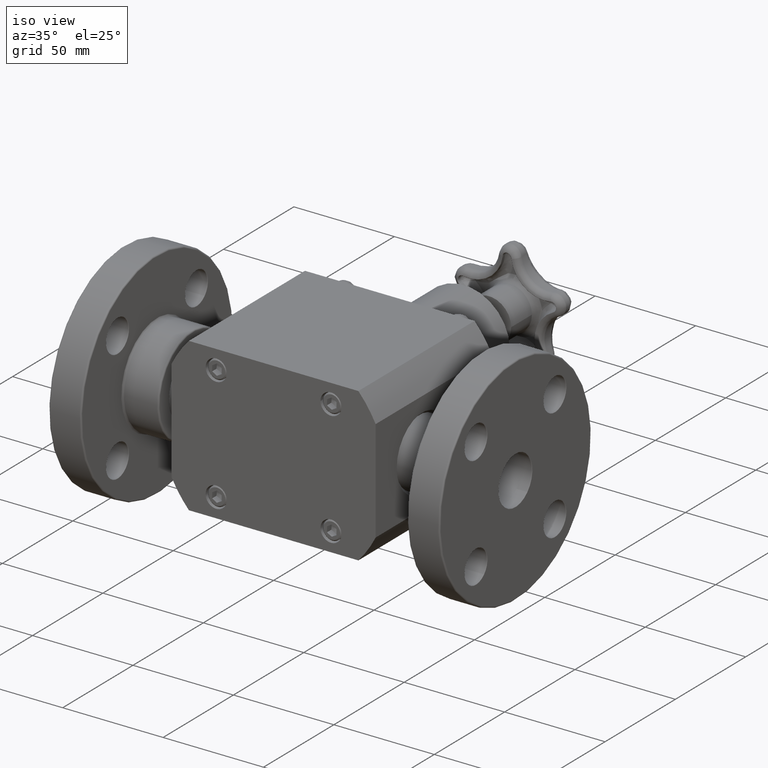
[diagram: clean part render]
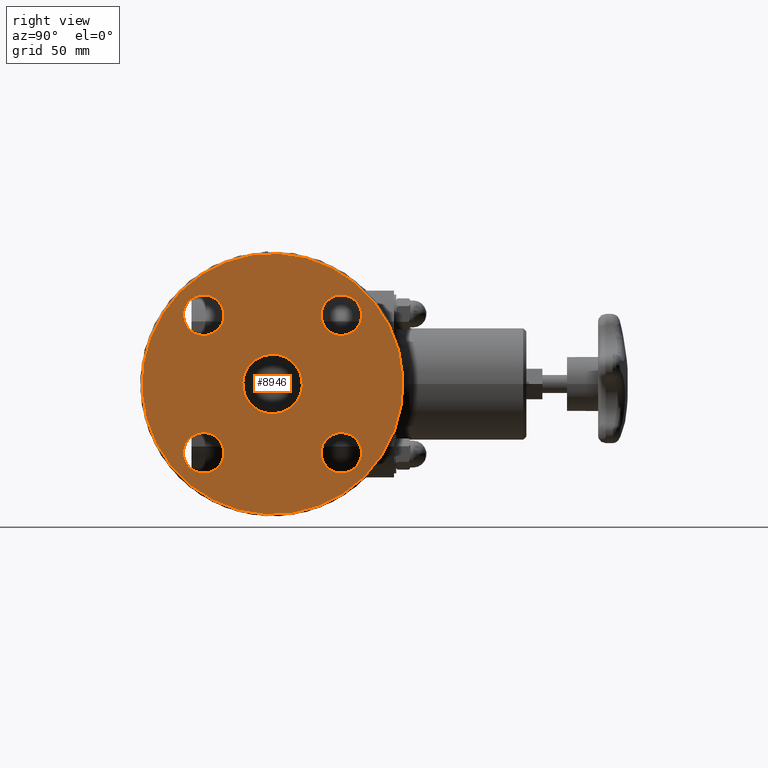
[diagram: tour spotlight — one face highlighted and labeled with its STEP entity id]
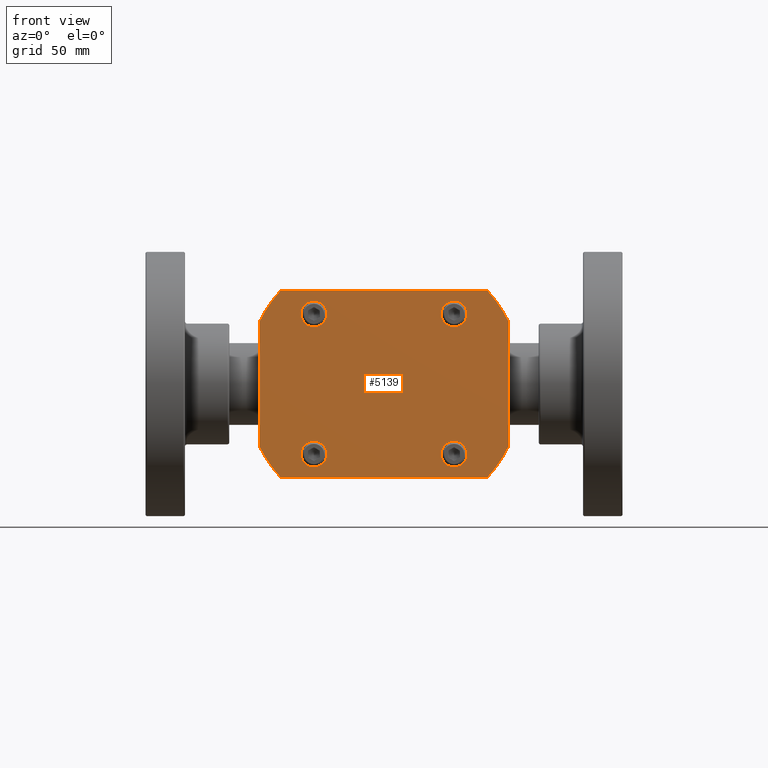
[diagram: tour spotlight — one face highlighted and labeled with its STEP entity id]
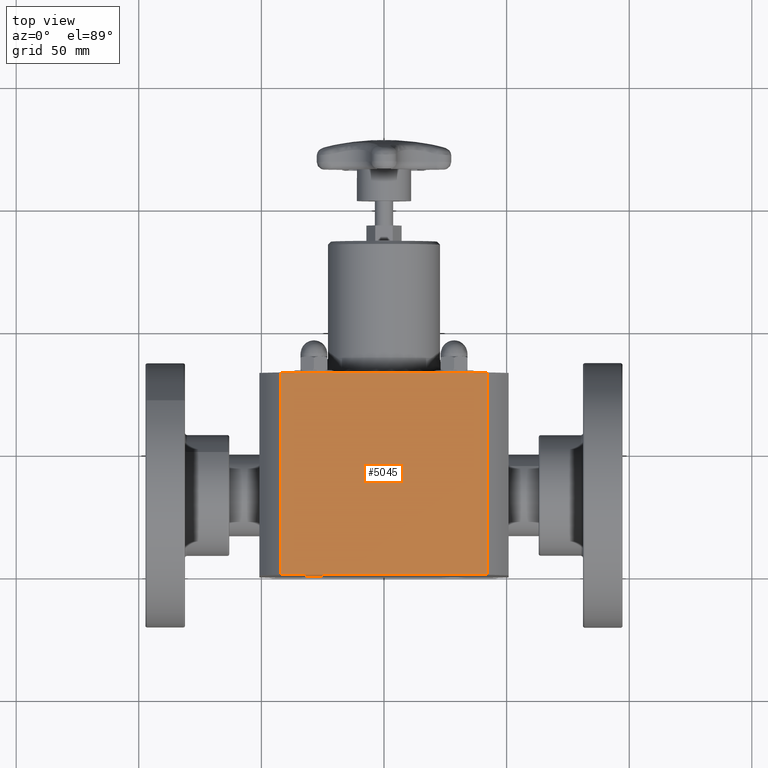
[diagram: tour spotlight — one face highlighted and labeled with its STEP entity id]
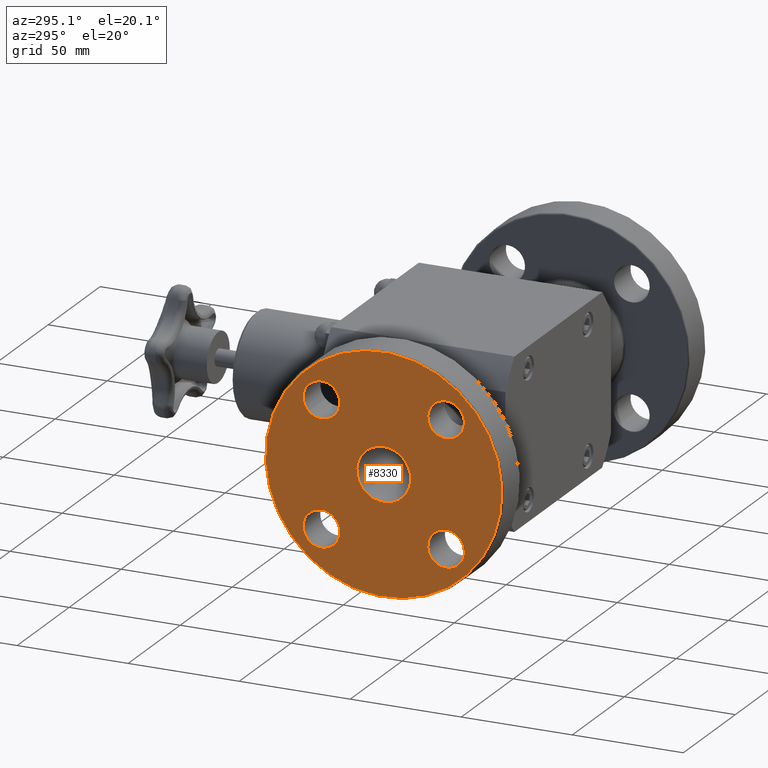
[diagram: tour spotlight — one face highlighted and labeled with its STEP entity id]
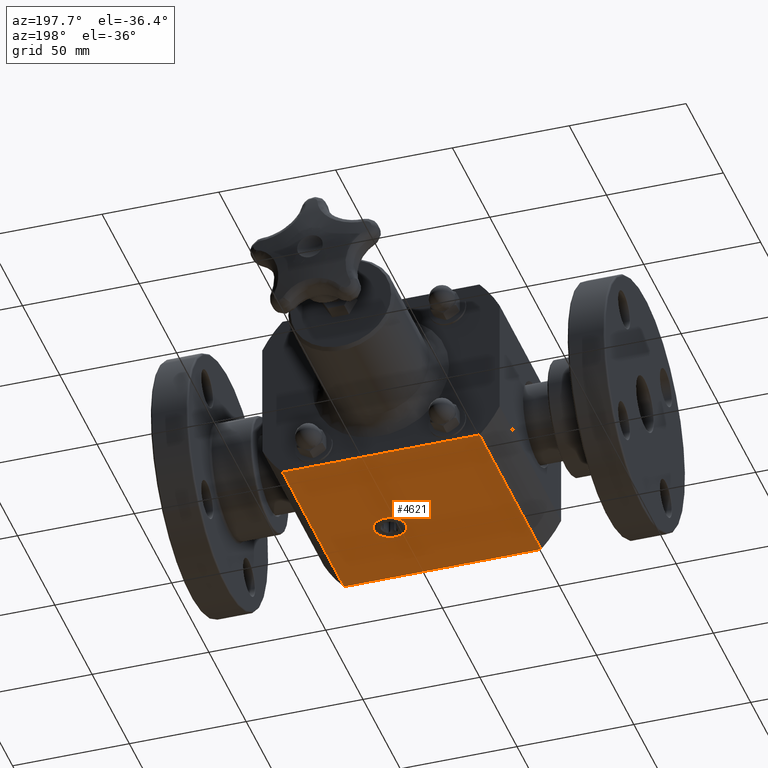
[diagram: tour spotlight — one face highlighted and labeled with its STEP entity id]
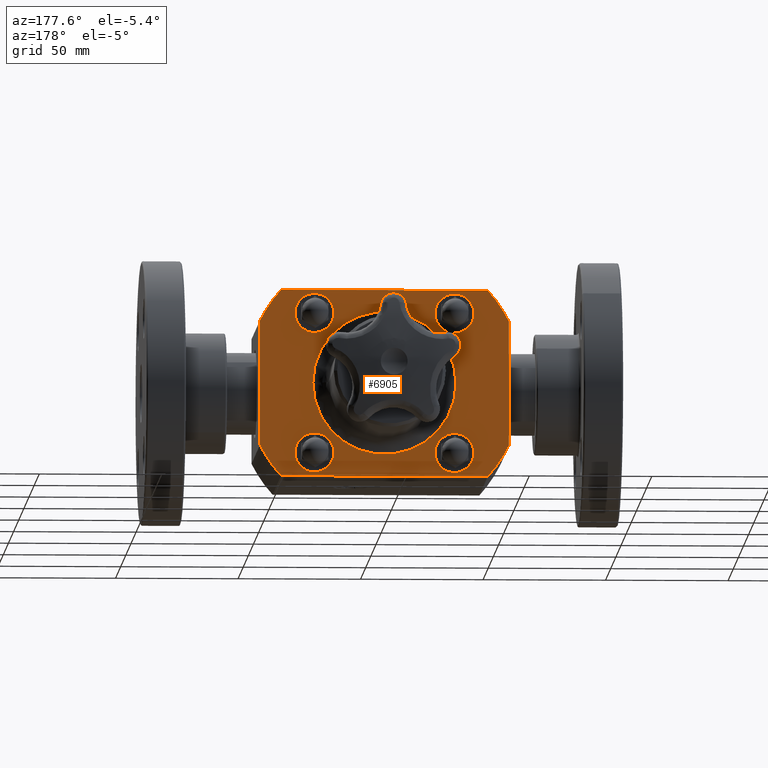
[diagram: tour spotlight — one face highlighted and labeled with its STEP entity id]
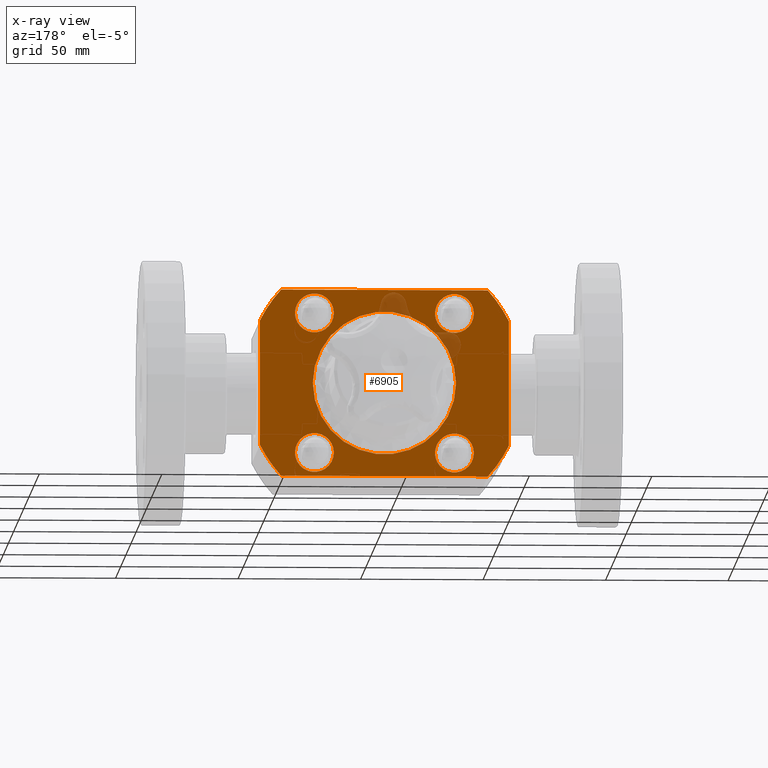
[diagram: x-ray of the same camera — body ghosted, this tour face saturated]
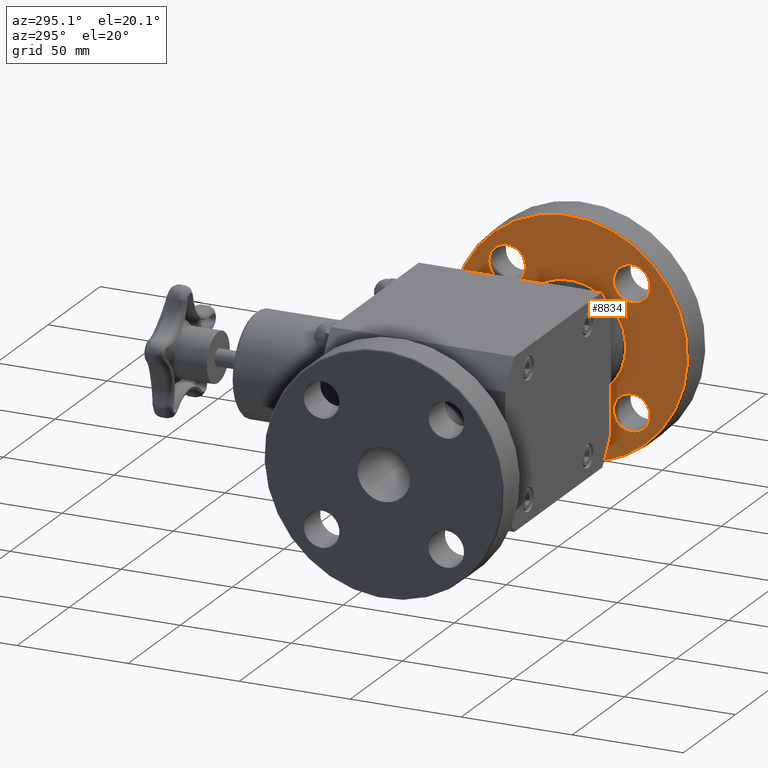
[diagram: tour spotlight — one face highlighted and labeled with its STEP entity id]
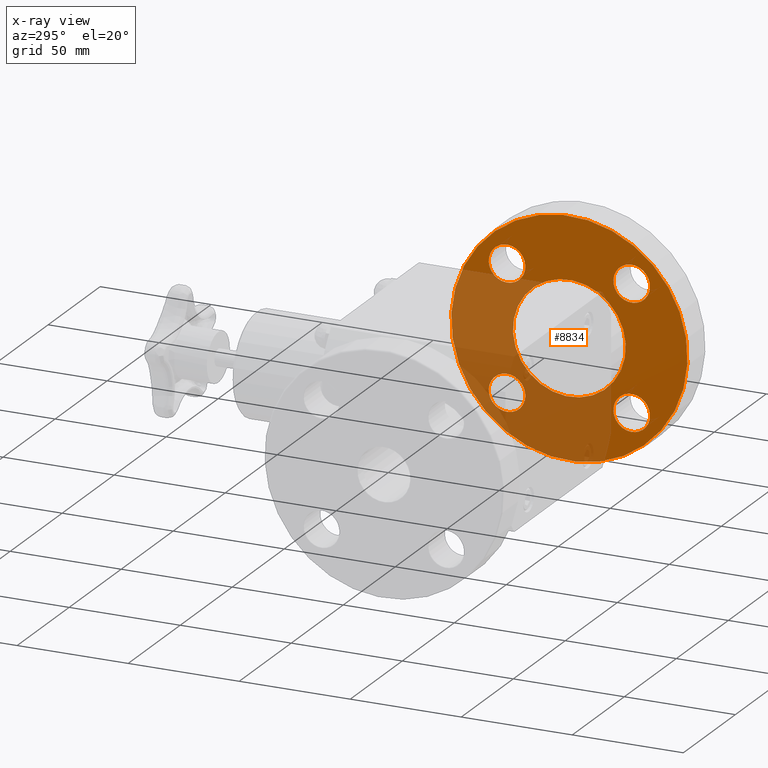
[diagram: x-ray of the same camera — body ghosted, this tour face saturated]
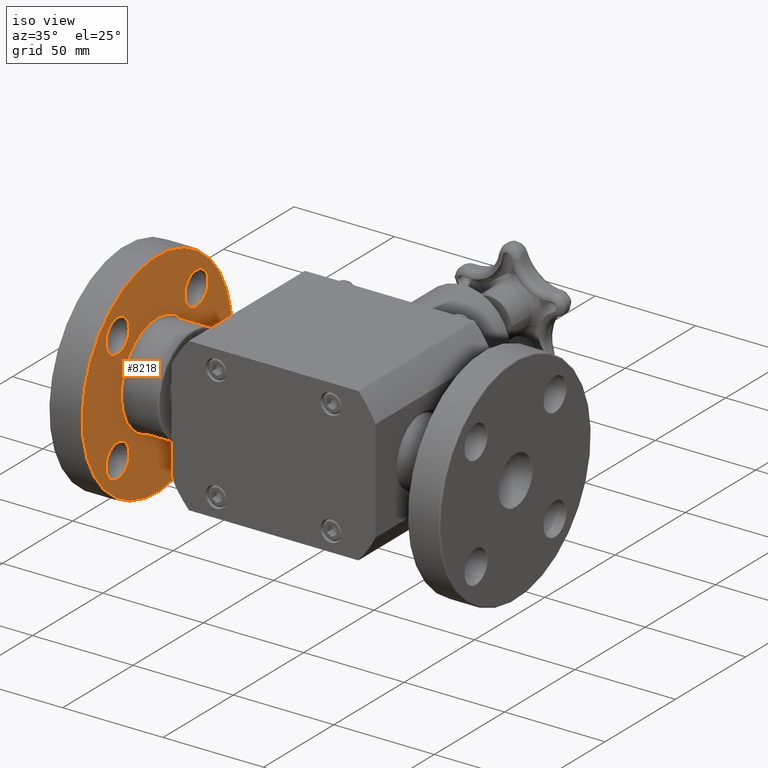
[diagram: tour spotlight — one face highlighted and labeled with its STEP entity id]
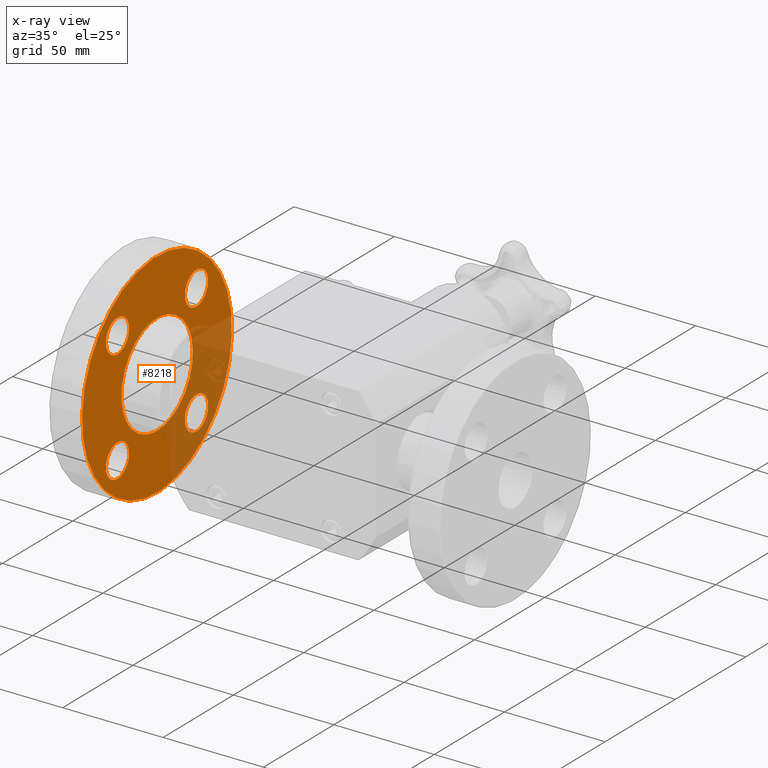
[diagram: x-ray of the same camera — body ghosted, this tour face saturated]
A machine part: a face-by-face anatomy tour. The part has 423 B-rep faces; the first image is the clean iso view, then the 8 largest visible faces are spotlighted one at a time (largest first), each with its STEP entity span.

Face 1 — right view, entity #8946. In plain terms, the highlighted planar face has unit normal (1, 0, 0).
Definition (entity closure, byte-faithful):
#8840=CARTESIAN_POINT('',(3.830000000000001,2.781388706585819,-1.481388706585816));
#8841=VERTEX_POINT('',#8840);
#8842=CARTESIAN_POINT('',(3.830000000000001,1.300000000000001,1.004807E-015));
#8843=DIRECTION('',(-1.000000000000000,6.123234E-017,-6.123234E-017));
#8844=DIRECTION('',(-8.659561E-017,-0.707106781186548,0.707106781186547));
#8845=AXIS2_PLACEMENT_3D('',#8842,#8843,#8844);
#8846=CIRCLE('',#8845,2.095000000000000);
#8847=EDGE_CURVE('',#8841,#8841,#8846,.T.);
#8883=CARTESIAN_POINT('',(3.830000000000001,2.216763941808360,-0.916763941808358));
#8884=DIRECTION('',(1.0,0.0,0.0));
#8885=DIRECTION('',(0.0,-0.707106781186547,-0.707106781186548));
#8886=AXIS2_PLACEMENT_3D('',#8883,#8884,#8885);
#8887=PLANE('',#8886);
#8888=ORIENTED_EDGE('',*,*,#8847,.F.);
#8889=EDGE_LOOP('',(#8888));
#8890=FACE_OUTER_BOUND('',#8889,.T.);
#8891=CARTESIAN_POINT('',(3.830000000000001,0.424955358281649,-1.334664049489608));
#8892=VERTEX_POINT('',#8891);
#8893=CARTESIAN_POINT('',(3.830000000000001,0.195145654396021,-1.104854345603979));
#8894=DIRECTION('',(1.0,-6.123234E-017,6.123234E-017));
#8895=DIRECTION('',(-8.659561E-017,-0.707106781186548,0.707106781186547));
#8896=AXIS2_PLACEMENT_3D('',#8893,#8894,#8895);
#8897=CIRCLE('',#8896,0.325000000000000);
#8898=EDGE_CURVE('',#8892,#8892,#8897,.T.);
#8899=ORIENTED_EDGE('',*,*,#8898,.F.);
#8900=EDGE_LOOP('',(#8899));
#8901=FACE_BOUND('',#8900,.T.);
#8902=CARTESIAN_POINT('',(3.830000000000001,-0.034664049489608,0.875044641718353));
#8903=VERTEX_POINT('',#8902);
#8904=CARTESIAN_POINT('',(3.830000000000001,0.195145654396020,1.104854345603981));
#8905=DIRECTION('',(1.0,6.123234E-017,6.123234E-017));
#8906=DIRECTION('',(-8.659561E-017,0.707106781186547,0.707106781186548));
#8907=AXIS2_PLACEMENT_3D('',#8904,#8905,#8906);
#8908=CIRCLE('',#8907,0.325000000000000);
#8909=EDGE_CURVE('',#8903,#8903,#8908,.T.);
#8910=ORIENTED_EDGE('',*,*,#8909,.F.);
#8911=EDGE_LOOP('',(#8910));
#8912=FACE_BOUND('',#8911,.T.);
#8913=CARTESIAN_POINT('',(3.830000000000001,2.175044641718353,1.334664049489610));
#8914=VERTEX_POINT('',#8913);
#8915=CARTESIAN_POINT('',(3.830000000000001,2.404854345603981,1.104854345603982));
#8916=DIRECTION('',(1.0,-6.123234E-017,6.123234E-017));
#8917=DIRECTION('',(8.659561E-017,0.707106781186548,-0.707106781186547));
#8918=AXIS2_PLACEMENT_3D('',#8915,#8916,#8917);
#8919=CIRCLE('',#8918,0.325000000000000);
#8920=EDGE_CURVE('',#8914,#8914,#8919,.T.);
#8921=ORIENTED_EDGE('',*,*,#8920,.F.);
#8922=EDGE_LOOP('',(#8921));
#8923=FACE_BOUND('',#8922,.T.);
#8924=CARTESIAN_POINT('',(3.830000000000001,1.637997041407171,-0.337997041407169));
#8925=VERTEX_POINT('',#8924);
#8926=CARTESIAN_POINT('',(3.830000000000001,1.300000000000001,1.004807E-015));
#8927=DIRECTION('',(1.0,-6.123234E-017,6.123234E-017));
#8928=DIRECTION('',(-8.659561E-017,-0.707106781186548,0.707106781186547));
#8929=AXIS2_PLACEMENT_3D('',#8926,#8927,#8928);
#8930=CIRCLE('',#8929,0.478000000000000);
#8931=EDGE_CURVE('',#8925,#8925,#8930,.T.);
#8932=ORIENTED_EDGE('',*,*,#8931,.F.);
#8933=EDGE_LOOP('',(#8932));
#8934=FACE_BOUND('',#8933,.T.);
#8935=CARTESIAN_POINT('',(3.830000000000001,2.634664049489610,-0.875044641718352));
#8936=VERTEX_POINT('',#8935);
#8937=CARTESIAN_POINT('',(3.830000000000001,2.404854345603982,-1.104854345603979));
#8938=DIRECTION('',(1.0,6.123234E-017,6.123234E-017));
#8939=DIRECTION('',(8.659561E-017,-0.707106781186547,-0.707106781186548));
#8940=AXIS2_PLACEMENT_3D('',#8937,#8938,#8939);
#8941=CIRCLE('',#8940,0.325000000000000);
#8942=EDGE_CURVE('',#8936,#8936,#8941,.T.);
#8943=ORIENTED_EDGE('',*,*,#8942,.F.);
#8944=EDGE_LOOP('',(#8943));
#8945=FACE_BOUND('',#8944,.T.);
#8946=ADVANCED_FACE('',(#8890,#8901,#8912,#8923,#8934,#8945),#8887,.T.);

Face 2 — front view, entity #5139. In plain terms, the highlighted planar face has unit normal (0, 1, 0).
Definition (entity closure, byte-faithful):
#4594=CARTESIAN_POINT('',(1.660916614403023,9.601586E-045,-1.500000000000000));
#4595=VERTEX_POINT('',#4594);
#4602=CARTESIAN_POINT('',(-1.660916614403023,-9.601586E-045,-1.500000000000000));
#4603=VERTEX_POINT('',#4602);
#4604=CARTESIAN_POINT('',(-1.660916614403023,-9.601586E-045,-1.500000000000000));
#4605=DIRECTION('',(1.0,0.0,0.0));
#4606=VECTOR('',#4605,3.321833228806046);
#4607=LINE('',#4604,#4606);
#4608=EDGE_CURVE('',#4603,#4595,#4607,.T.);
#4677=CARTESIAN_POINT('',(-2.0,-1.156179E-044,-1.004312700308026));
#4678=VERTEX_POINT('',#4677);
#4685=CARTESIAN_POINT('',(-2.0,-1.156179E-044,1.004312700308026));
#4686=VERTEX_POINT('',#4685);
#4687=CARTESIAN_POINT('',(-2.0,-1.156179E-044,1.004312700308027));
#4688=DIRECTION('',(0.0,0.0,-1.0));
#4689=VECTOR('',#4688,2.008625400616053);
#4690=LINE('',#4687,#4689);
#4691=EDGE_CURVE('',#4686,#4678,#4690,.T.);
#4767=CARTESIAN_POINT('',(2.0,1.156179E-044,1.004312700308026));
#4768=VERTEX_POINT('',#4767);
#4775=CARTESIAN_POINT('',(2.0,1.156179E-044,-1.004312700308026));
#4776=VERTEX_POINT('',#4775);
#4777=CARTESIAN_POINT('',(2.0,1.156179E-044,-1.004312700308026));
#4778=DIRECTION('',(0.0,0.0,1.0));
#4779=VECTOR('',#4778,2.008625400616053);
#4780=LINE('',#4777,#4779);
#4781=EDGE_CURVE('',#4776,#4768,#4780,.T.);
#4821=CARTESIAN_POINT('',(-1.125000000000001,-6.503508E-045,0.917500000000000));
#4822=VERTEX_POINT('',#4821);
#4823=CARTESIAN_POINT('',(-1.125000000000001,-6.503508E-045,1.125000000000000));
#4824=DIRECTION('',(0.0,1.0,0.0));
#4825=DIRECTION('',(0.0,0.0,-1.0));
#4826=AXIS2_PLACEMENT_3D('',#4823,#4824,#4825);
#4827=CIRCLE('',#4826,0.207500000000000);
#4828=EDGE_CURVE('',#4822,#4822,#4827,.T.);
#4862=CARTESIAN_POINT('',(-0.917500000000000,-5.303972E-045,-1.125000000000000));
#4863=VERTEX_POINT('',#4862);
#4864=CARTESIAN_POINT('',(-1.125000000000000,-6.503508E-045,-1.125000000000000));
#4865=DIRECTION('',(0.0,1.0,0.0));
#4866=DIRECTION('',(1.0,0.0,0.0));
#4867=AXIS2_PLACEMENT_3D('',#4864,#4865,#4866);
#4868=CIRCLE('',#4867,0.207500000000000);
#4869=EDGE_CURVE('',#4863,#4863,#4868,.T.);
#4911=CARTESIAN_POINT('',(1.125000000000000,6.503508E-045,-0.917500000000000));
#4912=VERTEX_POINT('',#4911);
#4913=CARTESIAN_POINT('',(1.125000000000000,6.503508E-045,-1.125000000000000));
#4914=DIRECTION('',(0.0,1.0,0.0));
#4915=DIRECTION('',(0.0,0.0,1.0));
#4916=AXIS2_PLACEMENT_3D('',#4913,#4914,#4915);
#4917=CIRCLE('',#4916,0.207500000000000);
#4918=EDGE_CURVE('',#4912,#4912,#4917,.T.);
#4960=CARTESIAN_POINT('',(0.917500000000000,5.303972E-045,1.125000000000000));
#4961=VERTEX_POINT('',#4960);
#4962=CARTESIAN_POINT('',(1.125000000000000,6.503508E-045,1.125000000000000));
#4963=DIRECTION('',(0.0,1.0,0.0));
#4964=DIRECTION('',(-1.0,0.0,0.0));
#4965=AXIS2_PLACEMENT_3D('',#4962,#4963,#4964);
#4966=CIRCLE('',#4965,0.207500000000000);
#4967=EDGE_CURVE('',#4961,#4961,#4966,.T.);
#4989=CARTESIAN_POINT('',(1.660916614403023,9.601586E-045,1.500000000000000));
#4990=VERTEX_POINT('',#4989);
#4997=CARTESIAN_POINT('',(0.0,0.0,0.0));
#4998=DIRECTION('',(3.183982E-045,-1.0,2.875505E-045));
#4999=DIRECTION('',(-0.742143259340046,-4.290253E-045,-0.670241286863271));
#5000=AXIS2_PLACEMENT_3D('',#4997,#4998,#4999);
#5001=CIRCLE('',#5000,2.238000000000000);
#5002=EDGE_CURVE('',#4768,#4990,#5001,.T.);
#5028=CARTESIAN_POINT('',(-1.660916614403023,-9.601586E-045,1.500000000000000));
#5029=VERTEX_POINT('',#5028);
#5036=CARTESIAN_POINT('',(1.660916614403023,9.601586E-045,1.500000000000000));
#5037=DIRECTION('',(-1.0,0.0,0.0));
#5038=VECTOR('',#5037,3.321833228806046);
#5039=LINE('',#5036,#5038);
#5040=EDGE_CURVE('',#4990,#5029,#5039,.T.);
#5053=CARTESIAN_POINT('',(0.0,0.0,0.0));
#5054=DIRECTION('',(4.616735E-045,-1.000000000000000,-2.318323E-045));
#5055=DIRECTION('',(0.893655049151028,5.166127E-045,-0.448754557778385));
#5056=AXIS2_PLACEMENT_3D('',#5053,#5054,#5055);
#5057=CIRCLE('',#5056,2.238000000000000);
#5058=EDGE_CURVE('',#5029,#4686,#5057,.T.);
#5071=CARTESIAN_POINT('',(0.0,0.0,0.0));
#5072=DIRECTION('',(3.183982E-045,-1.0,2.875505E-045));
#5073=DIRECTION('',(0.742143259340046,4.290253E-045,0.670241286863271));
#5074=AXIS2_PLACEMENT_3D('',#5071,#5072,#5073);
#5075=CIRCLE('',#5074,2.238000000000000);
#5076=EDGE_CURVE('',#4678,#4603,#5075,.T.);
#5089=CARTESIAN_POINT('',(0.0,0.0,0.0));
#5090=DIRECTION('',(4.616735E-045,-1.000000000000000,-2.318323E-045));
#5091=DIRECTION('',(-0.893655049151028,-5.166127E-045,0.448754557778385));
#5092=AXIS2_PLACEMENT_3D('',#5089,#5090,#5091);
#5093=CIRCLE('',#5092,2.238000000000000);
#5094=EDGE_CURVE('',#4595,#4776,#5093,.T.);
#5112=CARTESIAN_POINT('',(2.185478E-017,1.263402E-061,-1.311287E-016));
#5113=DIRECTION('',(0.0,1.0,0.0));
#5114=DIRECTION('',(0.0,0.0,-1.0));
#5115=AXIS2_PLACEMENT_3D('',#5112,#5113,#5114);
#5116=PLANE('',#5115);
#5117=ORIENTED_EDGE('',*,*,#4781,.T.);
#5118=ORIENTED_EDGE('',*,*,#5002,.T.);
#5119=ORIENTED_EDGE('',*,*,#5040,.T.);
#5120=ORIENTED_EDGE('',*,*,#5058,.T.);
#5121=ORIENTED_EDGE('',*,*,#4691,.T.);
#5122=ORIENTED_EDGE('',*,*,#5076,.T.);
#5123=ORIENTED_EDGE('',*,*,#4608,.T.);
#5124=ORIENTED_EDGE('',*,*,#5094,.T.);
#5125=EDGE_LOOP('',(#5117,#5118,#5119,#5120,#5121,#5122,#5123,#5124));
#5126=FACE_OUTER_BOUND('',#5125,.T.);
#5127=ORIENTED_EDGE('',*,*,#4828,.T.);
#5128=EDGE_LOOP('',(#5127));
#5129=FACE_BOUND('',#5128,.T.);
#5130=ORIENTED_EDGE('',*,*,#4869,.T.);
#5131=EDGE_LOOP('',(#5130));
#5132=FACE_BOUND('',#5131,.T.);
#5133=ORIENTED_EDGE('',*,*,#4918,.T.);
#5134=EDGE_LOOP('',(#5133));
#5135=FACE_BOUND('',#5134,.T.);
#5136=ORIENTED_EDGE('',*,*,#4967,.T.);
#5137=EDGE_LOOP('',(#5136));
#5138=FACE_BOUND('',#5137,.T.);
#5139=ADVANCED_FACE('',(#5126,#5129,#5132,#5135,#5138),#5116,.F.);

Face 3 — top view, entity #5045. In plain terms, the highlighted planar face has unit normal (0, 0, 1).
Definition (entity closure, byte-faithful):
#4209=CARTESIAN_POINT('',(1.660242828624778,2.500000000000000,1.500000000000000));
#4210=VERTEX_POINT('',#4209);
#4211=CARTESIAN_POINT('',(1.660242828624778,3.250000000000000,1.500000000000000));
#4212=VERTEX_POINT('',#4211);
#4213=CARTESIAN_POINT('',(1.660242828624778,2.500000000000000,1.500000000000000));
#4214=DIRECTION('',(0.0,1.0,0.0));
#4215=VECTOR('',#4214,0.750000000000000);
#4216=LINE('',#4213,#4215);
#4217=EDGE_CURVE('',#4210,#4212,#4216,.T.);
#4261=CARTESIAN_POINT('',(-1.660242828624776,2.500000000000000,1.500000000000000));
#4262=VERTEX_POINT('',#4261);
#4270=CARTESIAN_POINT('',(-1.660242828624776,3.250000000000000,1.500000000000000));
#4271=VERTEX_POINT('',#4270);
#4272=CARTESIAN_POINT('',(-1.660242828624776,3.250000000000000,1.500000000000000));
#4273=DIRECTION('',(0.0,-1.0,0.0));
#4274=VECTOR('',#4273,0.750000000000000);
#4275=LINE('',#4272,#4274);
#4276=EDGE_CURVE('',#4271,#4262,#4275,.T.);
#4509=CARTESIAN_POINT('',(-1.660916614403023,2.500000000000000,1.500000000000000));
#4510=VERTEX_POINT('',#4509);
#4518=CARTESIAN_POINT('',(-1.660242828624776,2.500000000000000,1.500000000000000));
#4519=DIRECTION('',(-1.0,0.0,0.0));
#4520=VECTOR('',#4519,0.000673785778247);
#4521=LINE('',#4518,#4520);
#4522=EDGE_CURVE('',#4262,#4510,#4521,.T.);
#4980=CARTESIAN_POINT('',(1.660916614403023,2.500000000000000,1.500000000000000));
#4981=VERTEX_POINT('',#4980);
#4989=CARTESIAN_POINT('',(1.660916614403023,9.601586E-045,1.500000000000000));
#4990=VERTEX_POINT('',#4989);
#4991=CARTESIAN_POINT('',(1.660916614403023,9.601586E-045,1.500000000000000));
#4992=DIRECTION('',(0.0,1.0,0.0));
#4993=VECTOR('',#4992,2.500000000000000);
#4994=LINE('',#4991,#4993);
#4995=EDGE_CURVE('',#4990,#4981,#4994,.T.);
#5008=CARTESIAN_POINT('',(1.660916614403023,9.601586E-045,1.500000000000000));
#5009=DIRECTION('',(0.0,0.0,1.0));
#5010=DIRECTION('',(1.0,0.0,0.0));
#5011=AXIS2_PLACEMENT_3D('',#5008,#5009,#5010);
#5012=PLANE('',#5011);
#5013=CARTESIAN_POINT('',(1.660916614403023,2.500000000000000,1.500000000000000));
#5014=DIRECTION('',(-1.0,0.0,0.0));
#5015=VECTOR('',#5014,0.000673785778245);
#5016=LINE('',#5013,#5015);
#5017=EDGE_CURVE('',#4981,#4210,#5016,.T.);
#5018=ORIENTED_EDGE('',*,*,#5017,.T.);
#5019=ORIENTED_EDGE('',*,*,#4217,.T.);
#5020=CARTESIAN_POINT('',(1.660242828624778,3.250000000000000,1.500000000000000));
#5021=DIRECTION('',(-1.0,0.0,0.0));
#5022=VECTOR('',#5021,3.320485657249554);
#5023=LINE('',#5020,#5022);
#5024=EDGE_CURVE('',#4212,#4271,#5023,.T.);
#5025=ORIENTED_EDGE('',*,*,#5024,.T.);
#5026=ORIENTED_EDGE('',*,*,#4276,.T.);
#5027=ORIENTED_EDGE('',*,*,#4522,.T.);
#5028=CARTESIAN_POINT('',(-1.660916614403023,-9.601586E-045,1.500000000000000));
#5029=VERTEX_POINT('',#5028);
#5030=CARTESIAN_POINT('',(-1.660916614403023,-9.601586E-045,1.500000000000000));
#5031=DIRECTION('',(0.0,1.0,0.0));
#5032=VECTOR('',#5031,2.500000000000000);
#5033=LINE('',#5030,#5032);
#5034=EDGE_CURVE('',#5029,#4510,#5033,.T.);
#5035=ORIENTED_EDGE('',*,*,#5034,.F.);
#5036=CARTESIAN_POINT('',(1.660916614403023,9.601586E-045,1.500000000000000));
#5037=DIRECTION('',(-1.0,0.0,0.0));
#5038=VECTOR('',#5037,3.321833228806046);
#5039=LINE('',#5036,#5038);
#5040=EDGE_CURVE('',#4990,#5029,#5039,.T.);
#5041=ORIENTED_EDGE('',*,*,#5040,.F.);
#5042=ORIENTED_EDGE('',*,*,#4995,.T.);
#5043=EDGE_LOOP('',(#5018,#5019,#5025,#5026,#5027,#5035,#5041,#5042));
#5044=FACE_OUTER_BOUND('',#5043,.T.);
#5045=ADVANCED_FACE('',(#5044),#5012,.T.);

Face 4 — auxiliary view, entity #8330. In plain terms, the highlighted planar face has unit normal (-1, 0, 0).
Definition (entity closure, byte-faithful):
#8224=CARTESIAN_POINT('',(-3.830000000000001,2.781388706585818,1.481388706585816));
#8225=VERTEX_POINT('',#8224);
#8226=CARTESIAN_POINT('',(-3.830000000000001,1.300000000000001,-1.134578E-015));
#8227=DIRECTION('',(1.000000000000000,-3.930963E-032,-3.930963E-032));
#8228=DIRECTION('',(-5.559221E-032,-0.707106781186548,-0.707106781186547));
#8229=AXIS2_PLACEMENT_3D('',#8226,#8227,#8228);
#8230=CIRCLE('',#8229,2.095000000000000);
#8231=EDGE_CURVE('',#8225,#8225,#8230,.T.);
#8267=CARTESIAN_POINT('',(-3.830000000000001,2.216763941808360,0.916763941808358));
#8268=DIRECTION('',(-1.0,0.0,0.0));
#8269=DIRECTION('',(0.0,-0.707106781186547,0.707106781186548));
#8270=AXIS2_PLACEMENT_3D('',#8267,#8268,#8269);
#8271=PLANE('',#8270);
#8272=ORIENTED_EDGE('',*,*,#8231,.F.);
#8273=EDGE_LOOP('',(#8272));
#8274=FACE_OUTER_BOUND('',#8273,.T.);
#8275=CARTESIAN_POINT('',(-3.830000000000001,0.424955358281648,1.334664049489608));
#8276=VERTEX_POINT('',#8275);
#8277=CARTESIAN_POINT('',(-3.830000000000001,0.195145654396020,1.104854345603979));
#8278=DIRECTION('',(-1.0,4.223265E-032,4.223265E-032));
#8279=DIRECTION('',(-5.972599E-032,-0.707106781186548,-0.707106781186547));
#8280=AXIS2_PLACEMENT_3D('',#8277,#8278,#8279);
#8281=CIRCLE('',#8280,0.325000000000000);
#8282=EDGE_CURVE('',#8276,#8276,#8281,.T.);
#8283=ORIENTED_EDGE('',*,*,#8282,.F.);
#8284=EDGE_LOOP('',(#8283));
#8285=FACE_BOUND('',#8284,.T.);
#8286=CARTESIAN_POINT('',(-3.830000000000001,-0.034664049489608,-0.875044641718353));
#8287=VERTEX_POINT('',#8286);
#8288=CARTESIAN_POINT('',(-3.830000000000001,0.195145654396020,-1.104854345603981));
#8289=DIRECTION('',(-1.0,1.220207E-031,-1.220207E-031));
#8290=DIRECTION('',(1.725633E-031,0.707106781186547,-0.707106781186548));
#8291=AXIS2_PLACEMENT_3D('',#8288,#8289,#8290);
#8292=CIRCLE('',#8291,0.325000000000000);
#8293=EDGE_CURVE('',#8287,#8287,#8292,.T.);
#8294=ORIENTED_EDGE('',*,*,#8293,.F.);
#8295=EDGE_LOOP('',(#8294));
#8296=FACE_BOUND('',#8295,.T.);
#8297=CARTESIAN_POINT('',(-3.830000000000001,2.175044641718353,-1.334664049489610));
#8298=VERTEX_POINT('',#8297);
#8299=CARTESIAN_POINT('',(-3.830000000000001,2.404854345603981,-1.104854345603982));
#8300=DIRECTION('',(-1.0,4.223265E-032,4.223265E-032));
#8301=DIRECTION('',(5.972599E-032,0.707106781186548,0.707106781186547));
#8302=AXIS2_PLACEMENT_3D('',#8299,#8300,#8301);
#8303=CIRCLE('',#8302,0.325000000000000);
#8304=EDGE_CURVE('',#8298,#8298,#8303,.T.);
#8305=ORIENTED_EDGE('',*,*,#8304,.F.);
#8306=EDGE_LOOP('',(#8305));
#8307=FACE_BOUND('',#8306,.T.);
#8308=CARTESIAN_POINT('',(-3.830000000000001,1.637997041407171,0.337997041407169));
#8309=VERTEX_POINT('',#8308);
#8310=CARTESIAN_POINT('',(-3.830000000000001,1.300000000000001,-1.134578E-015));
#8311=DIRECTION('',(-1.0,2.871467E-032,2.871467E-032));
#8312=DIRECTION('',(-4.060868E-032,-0.707106781186548,-0.707106781186547));
#8313=AXIS2_PLACEMENT_3D('',#8310,#8311,#8312);
#8314=CIRCLE('',#8313,0.478000000000000);
#8315=EDGE_CURVE('',#8309,#8309,#8314,.T.);
#8316=ORIENTED_EDGE('',*,*,#8315,.F.);
#8317=EDGE_LOOP('',(#8316));
#8318=FACE_BOUND('',#8317,.T.);
#8319=CARTESIAN_POINT('',(-3.830000000000001,2.634664049489609,0.875044641718352));
#8320=VERTEX_POINT('',#8319);
#8321=CARTESIAN_POINT('',(-3.830000000000001,2.404854345603981,1.104854345603979));
#8322=DIRECTION('',(-1.0,1.220207E-031,-1.220207E-031));
#8323=DIRECTION('',(-1.725633E-031,-0.707106781186547,0.707106781186548));
#8324=AXIS2_PLACEMENT_3D('',#8321,#8322,#8323);
#8325=CIRCLE('',#8324,0.325000000000000);
#8326=EDGE_CURVE('',#8320,#8320,#8325,.T.);
#8327=ORIENTED_EDGE('',*,*,#8326,.F.);
#8328=EDGE_LOOP('',(#8327));
#8329=FACE_BOUND('',#8328,.T.);
#8330=ADVANCED_FACE('',(#8274,#8285,#8296,#8307,#8318,#8329),#8271,.T.);

Face 5 — auxiliary view, entity #4621. In plain terms, the highlighted planar face has unit normal (0, 0, -1).
Definition (entity closure, byte-faithful):
#4177=CARTESIAN_POINT('',(1.660242828624778,2.500000000000000,-1.499999999999999));
#4178=VERTEX_POINT('',#4177);
#4186=CARTESIAN_POINT('',(1.660242828624778,3.250000000000000,-1.499999999999999));
#4187=VERTEX_POINT('',#4186);
#4188=CARTESIAN_POINT('',(1.660242828624778,3.250000000000000,-1.499999999999999));
#4189=DIRECTION('',(0.0,-1.0,0.0));
#4190=VECTOR('',#4189,0.750000000000000);
#4191=LINE('',#4188,#4190);
#4192=EDGE_CURVE('',#4187,#4178,#4191,.T.);
#4303=CARTESIAN_POINT('',(-1.660242828624776,3.250000000000000,-1.500000000000000));
#4304=VERTEX_POINT('',#4303);
#4312=CARTESIAN_POINT('',(-1.660242828624776,2.500000000000000,-1.500000000000000));
#4313=VERTEX_POINT('',#4312);
#4314=CARTESIAN_POINT('',(-1.660242828624776,2.500000000000000,-1.500000000000000));
#4315=DIRECTION('',(0.0,1.0,0.0));
#4316=VECTOR('',#4315,0.750000000000000);
#4317=LINE('',#4314,#4316);
#4318=EDGE_CURVE('',#4313,#4304,#4317,.T.);
#4469=CARTESIAN_POINT('',(-1.660916614403023,2.500000000000000,-1.500000000000000));
#4470=VERTEX_POINT('',#4469);
#4471=CARTESIAN_POINT('',(-1.660916614403023,2.500000000000000,-1.500000000000000));
#4472=DIRECTION('',(1.0,0.0,0.0));
#4473=VECTOR('',#4472,0.000673785778247);
#4474=LINE('',#4471,#4473);
#4475=EDGE_CURVE('',#4470,#4313,#4474,.T.);
#4541=CARTESIAN_POINT('',(1.660916614403023,2.500000000000000,-1.500000000000000));
#4542=VERTEX_POINT('',#4541);
#4550=CARTESIAN_POINT('',(1.660242828624778,2.500000000000000,-1.500000000000000));
#4551=DIRECTION('',(1.0,0.0,0.0));
#4552=VECTOR('',#4551,0.000673785778245);
#4553=LINE('',#4550,#4552);
#4554=EDGE_CURVE('',#4178,#4542,#4553,.T.);
#4567=CARTESIAN_POINT('',(0.470000000000000,1.568750000000000,-1.500000000000000));
#4568=VERTEX_POINT('',#4567);
#4569=CARTESIAN_POINT('',(0.470000000000000,1.300000000000000,-1.500000000000000));
#4570=DIRECTION('',(0.0,0.0,-1.0));
#4571=DIRECTION('',(0.0,-1.0,0.0));
#4572=AXIS2_PLACEMENT_3D('',#4569,#4570,#4571);
#4573=CIRCLE('',#4572,0.268750000000000);
#4574=EDGE_CURVE('',#4568,#4568,#4573,.T.);
#4579=CARTESIAN_POINT('',(-1.660916614403023,-9.601586E-045,-1.500000000000000));
#4580=DIRECTION('',(0.0,0.0,-1.0));
#4581=DIRECTION('',(-1.0,0.0,0.0));
#4582=AXIS2_PLACEMENT_3D('',#4579,#4580,#4581);
#4583=PLANE('',#4582);
#4584=ORIENTED_EDGE('',*,*,#4475,.T.);
#4585=ORIENTED_EDGE('',*,*,#4318,.T.);
#4586=CARTESIAN_POINT('',(-1.660242828624776,3.250000000000000,-1.500000000000000));
#4587=DIRECTION('',(1.0,0.0,0.0));
#4588=VECTOR('',#4587,3.320485657249554);
#4589=LINE('',#4586,#4588);
#4590=EDGE_CURVE('',#4304,#4187,#4589,.T.);
#4591=ORIENTED_EDGE('',*,*,#4590,.T.);
#4592=ORIENTED_EDGE('',*,*,#4192,.T.);
#4593=ORIENTED_EDGE('',*,*,#4554,.T.);
#4594=CARTESIAN_POINT('',(1.660916614403023,9.601586E-045,-1.500000000000000));
#4595=VERTEX_POINT('',#4594);
#4596=CARTESIAN_POINT('',(1.660916614403023,9.601586E-045,-1.500000000000000));
#4597=DIRECTION('',(0.0,1.0,0.0));
#4598=VECTOR('',#4597,2.500000000000000);
#4599=LINE('',#4596,#4598);
#4600=EDGE_CURVE('',#4595,#4542,#4599,.T.);
#4601=ORIENTED_EDGE('',*,*,#4600,.F.);
#4602=CARTESIAN_POINT('',(-1.660916614403023,-9.601586E-045,-1.500000000000000));
#4603=VERTEX_POINT('',#4602);
#4604=CARTESIAN_POINT('',(-1.660916614403023,-9.601586E-045,-1.500000000000000));
#4605=DIRECTION('',(1.0,0.0,0.0));
#4606=VECTOR('',#4605,3.321833228806046);
#4607=LINE('',#4604,#4606);
#4608=EDGE_CURVE('',#4603,#4595,#4607,.T.);
#4609=ORIENTED_EDGE('',*,*,#4608,.F.);
#4610=CARTESIAN_POINT('',(-1.660916614403023,-9.601586E-045,-1.500000000000000));
#4611=DIRECTION('',(0.0,1.0,0.0));
#4612=VECTOR('',#4611,2.500000000000000);
#4613=LINE('',#4610,#4612);
#4614=EDGE_CURVE('',#4603,#4470,#4613,.T.);
#4615=ORIENTED_EDGE('',*,*,#4614,.T.);
#4616=EDGE_LOOP('',(#4584,#4585,#4591,#4592,#4593,#4601,#4609,#4615));
#4617=FACE_OUTER_BOUND('',#4616,.T.);
#4618=ORIENTED_EDGE('',*,*,#4574,.F.);
#4619=EDGE_LOOP('',(#4618));
#4620=FACE_BOUND('',#4619,.T.);
#4621=ADVANCED_FACE('',(#4617,#4620),#4583,.T.);

Face 6 — auxiliary view, entity #6905. An x-ray twin of the same camera follows (body ghosted, this face saturated) — the face is partly hidden behind the body. In plain terms, the highlighted planar face has unit normal (0, 1, 0).
Definition (entity closure, byte-faithful):
#2407=CARTESIAN_POINT('',(-0.812499999999999,3.250000000000000,1.125000000000001));
#2408=VERTEX_POINT('',#2407);
#2409=CARTESIAN_POINT('',(-1.124999999999999,3.250000000000000,1.125000000000001));
#2410=DIRECTION('',(0.0,-1.0,0.0));
#2411=DIRECTION('',(1.0,0.0,0.0));
#2412=AXIS2_PLACEMENT_3D('',#2409,#2410,#2411);
#2413=CIRCLE('',#2412,0.312500000000000);
#2414=EDGE_CURVE('',#2408,#2408,#2413,.T.);
#3823=CARTESIAN_POINT('',(1.437500000000001,3.250000000000000,1.125000000000001));
#3824=VERTEX_POINT('',#3823);
#3825=CARTESIAN_POINT('',(1.125000000000001,3.250000000000000,1.125000000000001));
#3826=DIRECTION('',(0.0,-1.0,0.0));
#3827=DIRECTION('',(1.0,0.0,0.0));
#3828=AXIS2_PLACEMENT_3D('',#3825,#3826,#3827);
#3829=CIRCLE('',#3828,0.312500000000000);
#3830=EDGE_CURVE('',#3824,#3824,#3829,.T.);
#4169=CARTESIAN_POINT('',(2.000000000000000,3.250000000000000,-1.003198011361665));
#4170=VERTEX_POINT('',#4169);
#4186=CARTESIAN_POINT('',(1.660242828624778,3.250000000000000,-1.499999999999999));
#4187=VERTEX_POINT('',#4186);
#4194=CARTESIAN_POINT('',(6.993531E-016,3.250000000000000,5.463696E-016));
#4195=DIRECTION('',(0.0,-1.0,0.0));
#4196=DIRECTION('',(1.0,0.0,0.0));
#4197=AXIS2_PLACEMENT_3D('',#4194,#4195,#4196);
#4198=CIRCLE('',#4197,2.237500000000000);
#4199=EDGE_CURVE('',#4187,#4170,#4198,.T.);
#4211=CARTESIAN_POINT('',(1.660242828624778,3.250000000000000,1.500000000000000));
#4212=VERTEX_POINT('',#4211);
#4228=CARTESIAN_POINT('',(2.000000000000000,3.250000000000000,1.003198011361667));
#4229=VERTEX_POINT('',#4228);
#4236=CARTESIAN_POINT('',(6.993531E-016,3.250000000000000,5.463696E-016));
#4237=DIRECTION('',(0.0,-1.0,0.0));
#4238=DIRECTION('',(1.0,0.0,0.0));
#4239=AXIS2_PLACEMENT_3D('',#4236,#4237,#4238);
#4240=CIRCLE('',#4239,2.237500000000000);
#4241=EDGE_CURVE('',#4229,#4212,#4240,.T.);
#4253=CARTESIAN_POINT('',(-1.999999999999999,3.250000000000000,1.003198011361666));
#4254=VERTEX_POINT('',#4253);
#4270=CARTESIAN_POINT('',(-1.660242828624776,3.250000000000000,1.500000000000000));
#4271=VERTEX_POINT('',#4270);
#4278=CARTESIAN_POINT('',(6.993531E-016,3.250000000000000,5.463696E-016));
#4279=DIRECTION('',(0.0,-1.0,0.0));
#4280=DIRECTION('',(1.0,0.0,0.0));
#4281=AXIS2_PLACEMENT_3D('',#4278,#4279,#4280);
#4282=CIRCLE('',#4281,2.237500000000000);
#4283=EDGE_CURVE('',#4271,#4254,#4282,.T.);
#4293=CARTESIAN_POINT('',(-1.999999999999999,3.250000000000000,-1.003198011361665));
#4294=VERTEX_POINT('',#4293);
#4303=CARTESIAN_POINT('',(-1.660242828624776,3.250000000000000,-1.500000000000000));
#4304=VERTEX_POINT('',#4303);
#4305=CARTESIAN_POINT('',(6.993531E-016,3.250000000000000,5.463696E-016));
#4306=DIRECTION('',(0.0,-1.0,0.0));
#4307=DIRECTION('',(1.0,0.0,0.0));
#4308=AXIS2_PLACEMENT_3D('',#4305,#4306,#4307);
#4309=CIRCLE('',#4308,2.237500000000000);
#4310=EDGE_CURVE('',#4294,#4304,#4309,.T.);
#4448=CARTESIAN_POINT('',(1.150000000000001,3.250000000000000,7.474336E-016));
#4449=VERTEX_POINT('',#4448);
#4450=CARTESIAN_POINT('',(6.993531E-016,3.250000000000000,5.463696E-016));
#4451=DIRECTION('',(0.0,-1.0,0.0));
#4452=DIRECTION('',(1.0,0.0,0.0));
#4453=AXIS2_PLACEMENT_3D('',#4450,#4451,#4452);
#4454=CIRCLE('',#4453,1.150000000000000);
#4455=EDGE_CURVE('',#4449,#4449,#4454,.T.);
#4586=CARTESIAN_POINT('',(-1.660242828624776,3.250000000000000,-1.500000000000000));
#4587=DIRECTION('',(1.0,0.0,0.0));
#4588=VECTOR('',#4587,3.320485657249554);
#4589=LINE('',#4586,#4588);
#4590=EDGE_CURVE('',#4304,#4187,#4589,.T.);
#4669=CARTESIAN_POINT('',(-1.999999999999999,3.250000000000000,1.003198011361666));
#4670=DIRECTION('',(0.0,0.0,-1.0));
#4671=VECTOR('',#4670,2.006396022723330);
#4672=LINE('',#4669,#4671);
#4673=EDGE_CURVE('',#4254,#4294,#4672,.T.);
#4752=CARTESIAN_POINT('',(2.000000000000000,3.250000000000000,-1.003198011361665));
#4753=DIRECTION('',(0.0,0.0,1.0));
#4754=VECTOR('',#4753,2.006396022723332);
#4755=LINE('',#4752,#4754);
#4756=EDGE_CURVE('',#4170,#4229,#4755,.T.);
#5020=CARTESIAN_POINT('',(1.660242828624778,3.250000000000000,1.500000000000000));
#5021=DIRECTION('',(-1.0,0.0,0.0));
#5022=VECTOR('',#5021,3.320485657249554);
#5023=LINE('',#5020,#5022);
#5024=EDGE_CURVE('',#4212,#4271,#5023,.T.);
#5475=CARTESIAN_POINT('',(1.437500000000001,3.250000000000000,-1.124999999999999));
#5476=VERTEX_POINT('',#5475);
#5477=CARTESIAN_POINT('',(1.125000000000001,3.249999999999999,-1.124999999999999));
#5478=DIRECTION('',(0.0,-1.0,0.0));
#5479=DIRECTION('',(1.0,0.0,0.0));
#5480=AXIS2_PLACEMENT_3D('',#5477,#5478,#5479);
#5481=CIRCLE('',#5480,0.312500000000000);
#5482=EDGE_CURVE('',#5476,#5476,#5481,.T.);
#6867=CARTESIAN_POINT('',(1.693750000000001,3.250000000000000,8.425019E-016));
#6868=DIRECTION('',(0.0,1.0,0.0));
#6869=DIRECTION('',(0.0,0.0,1.0));
#6870=AXIS2_PLACEMENT_3D('',#6867,#6868,#6869);
#6871=PLANE('',#6870);
#6872=ORIENTED_EDGE('',*,*,#4673,.F.);
#6873=ORIENTED_EDGE('',*,*,#4283,.F.);
#6874=ORIENTED_EDGE('',*,*,#5024,.F.);
#6875=ORIENTED_EDGE('',*,*,#4241,.F.);
#6876=ORIENTED_EDGE('',*,*,#4756,.F.);
#6877=ORIENTED_EDGE('',*,*,#4199,.F.);
#6878=ORIENTED_EDGE('',*,*,#4590,.F.);
#6879=ORIENTED_EDGE('',*,*,#4310,.F.);
#6880=EDGE_LOOP('',(#6872,#6873,#6874,#6875,#6876,#6877,#6878,#6879));
#6881=FACE_OUTER_BOUND('',#6880,.T.);
#6882=ORIENTED_EDGE('',*,*,#2414,.T.);
#6883=EDGE_LOOP('',(#6882));
#6884=FACE_BOUND('',#6883,.T.);
#6885=ORIENTED_EDGE('',*,*,#3830,.T.);
#6886=EDGE_LOOP('',(#6885));
#6887=FACE_BOUND('',#6886,.T.);
#6888=ORIENTED_EDGE('',*,*,#4455,.T.);
#6889=EDGE_LOOP('',(#6888));
#6890=FACE_BOUND('',#6889,.T.);
#6891=ORIENTED_EDGE('',*,*,#5482,.T.);
#6892=EDGE_LOOP('',(#6891));
#6893=FACE_BOUND('',#6892,.T.);
#6894=CARTESIAN_POINT('',(-0.812499999999999,3.250000000000000,-1.124999999999999));
#6895=VERTEX_POINT('',#6894);
#6896=CARTESIAN_POINT('',(-1.124999999999999,3.250000000000000,-1.124999999999999));
#6897=DIRECTION('',(0.0,-1.0,0.0));
#6898=DIRECTION('',(1.0,0.0,0.0));
#6899=AXIS2_PLACEMENT_3D('',#6896,#6897,#6898);
#6900=CIRCLE('',#6899,0.312500000000000);
#6901=EDGE_CURVE('',#6895,#6895,#6900,.T.);
#6902=ORIENTED_EDGE('',*,*,#6901,.T.);
#6903=EDGE_LOOP('',(#6902));
#6904=FACE_BOUND('',#6903,.T.);
#6905=ADVANCED_FACE('',(#6881,#6884,#6887,#6890,#6893,#6904),#6871,.T.);

Face 7 — auxiliary view, entity #8834. An x-ray twin of the same camera follows (body ghosted, this face saturated) — the face is partly hidden behind the body. In plain terms, the highlighted planar face has unit normal (-1, 0, 0).
Definition (entity closure, byte-faithful):
#8756=CARTESIAN_POINT('',(3.195000000000001,2.007460334577142,-0.707460334577140));
#8757=VERTEX_POINT('',#8756);
#8758=CARTESIAN_POINT('',(3.195000000000001,1.300000000000001,9.270421E-016));
#8759=DIRECTION('',(-1.000000000000000,6.123234E-017,-6.123234E-017));
#8760=DIRECTION('',(-8.659561E-017,-0.707106781186548,0.707106781186547));
#8761=AXIS2_PLACEMENT_3D('',#8758,#8759,#8760);
#8762=CIRCLE('',#8761,1.000500000000000);
#8763=EDGE_CURVE('',#8757,#8757,#8762,.T.);
#8771=CARTESIAN_POINT('',(3.195000000000001,2.394424520581480,-1.094424520581478));
#8772=DIRECTION('',(-1.0,0.0,0.0));
#8773=DIRECTION('',(0.0,0.707106781186547,0.707106781186548));
#8774=AXIS2_PLACEMENT_3D('',#8771,#8772,#8773);
#8775=PLANE('',#8774);
#8776=CARTESIAN_POINT('',(3.195000000000001,2.781388706585819,-1.481388706585816));
#8777=VERTEX_POINT('',#8776);
#8778=CARTESIAN_POINT('',(3.195000000000001,1.300000000000001,9.270421E-016));
#8779=DIRECTION('',(1.000000000000000,-6.123234E-017,6.123234E-017));
#8780=DIRECTION('',(-8.659561E-017,-0.707106781186548,0.707106781186547));
#8781=AXIS2_PLACEMENT_3D('',#8778,#8779,#8780);
#8782=CIRCLE('',#8781,2.095000000000000);
#8783=EDGE_CURVE('',#8777,#8777,#8782,.T.);
#8784=ORIENTED_EDGE('',*,*,#8783,.F.);
#8785=EDGE_LOOP('',(#8784));
#8786=FACE_OUTER_BOUND('',#8785,.T.);
#8787=CARTESIAN_POINT('',(3.195000000000001,2.175044641718353,1.334664049489610));
#8788=VERTEX_POINT('',#8787);
#8789=CARTESIAN_POINT('',(3.195000000000001,2.404854345603981,1.104854345603982));
#8790=DIRECTION('',(-1.0,6.123234E-017,-6.123234E-017));
#8791=DIRECTION('',(8.659561E-017,0.707106781186548,-0.707106781186547));
#8792=AXIS2_PLACEMENT_3D('',#8789,#8790,#8791);
#8793=CIRCLE('',#8792,0.325000000000000);
#8794=EDGE_CURVE('',#8788,#8788,#8793,.T.);
#8795=ORIENTED_EDGE('',*,*,#8794,.F.);
#8796=EDGE_LOOP('',(#8795));
#8797=FACE_BOUND('',#8796,.T.);
#8798=CARTESIAN_POINT('',(3.195000000000001,0.424955358281649,-1.334664049489608));
#8799=VERTEX_POINT('',#8798);
#8800=CARTESIAN_POINT('',(3.195000000000001,0.195145654396021,-1.104854345603980));
#8801=DIRECTION('',(-1.0,6.123234E-017,-6.123234E-017));
#8802=DIRECTION('',(-8.659561E-017,-0.707106781186548,0.707106781186547));
#8803=AXIS2_PLACEMENT_3D('',#8800,#8801,#8802);
#8804=CIRCLE('',#8803,0.325000000000000);
#8805=EDGE_CURVE('',#8799,#8799,#8804,.T.);
#8806=ORIENTED_EDGE('',*,*,#8805,.F.);
#8807=EDGE_LOOP('',(#8806));
#8808=FACE_BOUND('',#8807,.T.);
#8809=CARTESIAN_POINT('',(3.195000000000001,2.634664049489610,-0.875044641718352));
#8810=VERTEX_POINT('',#8809);
#8811=CARTESIAN_POINT('',(3.195000000000001,2.404854345603982,-1.104854345603979));
#8812=DIRECTION('',(-1.0,-6.123234E-017,-6.123234E-017));
#8813=DIRECTION('',(8.659561E-017,-0.707106781186547,-0.707106781186548));
#8814=AXIS2_PLACEMENT_3D('',#8811,#8812,#8813);
#8815=CIRCLE('',#8814,0.325000000000000);
#8816=EDGE_CURVE('',#8810,#8810,#8815,.T.);
#8817=ORIENTED_EDGE('',*,*,#8816,.F.);
#8818=EDGE_LOOP('',(#8817));
#8819=FACE_BOUND('',#8818,.T.);
#8820=CARTESIAN_POINT('',(3.195000000000001,-0.034664049489608,0.875044641718353));
#8821=VERTEX_POINT('',#8820);
#8822=CARTESIAN_POINT('',(3.195000000000001,0.195145654396020,1.104854345603981));
#8823=DIRECTION('',(-1.0,-6.123234E-017,-6.123234E-017));
#8824=DIRECTION('',(-8.659561E-017,0.707106781186547,0.707106781186548));
#8825=AXIS2_PLACEMENT_3D('',#8822,#8823,#8824);
#8826=CIRCLE('',#8825,0.325000000000000);
#8827=EDGE_CURVE('',#8821,#8821,#8826,.T.);
#8828=ORIENTED_EDGE('',*,*,#8827,.F.);
#8829=EDGE_LOOP('',(#8828));
#8830=FACE_BOUND('',#8829,.T.);
#8831=ORIENTED_EDGE('',*,*,#8763,.F.);
#8832=EDGE_LOOP('',(#8831));
#8833=FACE_BOUND('',#8832,.T.);
#8834=ADVANCED_FACE('',(#8786,#8797,#8808,#8819,#8830,#8833),#8775,.T.);

Face 8 — iso view, entity #8218. An x-ray twin of the same camera follows (body ghosted, this face saturated) — the face is partly hidden behind the body. In plain terms, the highlighted planar face has unit normal (1, 0, 0).
Definition (entity closure, byte-faithful):
#8140=CARTESIAN_POINT('',(-3.195000000000001,2.007460334577142,0.707460334577139));
#8141=VERTEX_POINT('',#8140);
#8142=CARTESIAN_POINT('',(-3.195000000000001,1.300000000000001,-1.134578E-015));
#8143=DIRECTION('',(1.000000000000000,-4.115626E-032,-4.115626E-032));
#8144=DIRECTION('',(-5.820374E-032,-0.707106781186548,-0.707106781186547));
#8145=AXIS2_PLACEMENT_3D('',#8142,#8143,#8144);
#8146=CIRCLE('',#8145,1.000500000000000);
#8147=EDGE_CURVE('',#8141,#8141,#8146,.T.);
#8155=CARTESIAN_POINT('',(-3.195000000000001,2.394424520581480,1.094424520581478));
#8156=DIRECTION('',(1.0,0.0,0.0));
#8157=DIRECTION('',(0.0,0.707106781186547,-0.707106781186548));
#8158=AXIS2_PLACEMENT_3D('',#8155,#8156,#8157);
#8159=PLANE('',#8158);
#8160=CARTESIAN_POINT('',(-3.195000000000001,2.781388706585819,1.481388706585816));
#8161=VERTEX_POINT('',#8160);
#8162=CARTESIAN_POINT('',(-3.195000000000001,1.300000000000001,-1.134578E-015));
#8163=DIRECTION('',(-1.000000000000000,3.930963E-032,3.930963E-032));
#8164=DIRECTION('',(-5.559221E-032,-0.707106781186548,-0.707106781186547));
#8165=AXIS2_PLACEMENT_3D('',#8162,#8163,#8164);
#8166=CIRCLE('',#8165,2.095000000000000);
#8167=EDGE_CURVE('',#8161,#8161,#8166,.T.);
#8168=ORIENTED_EDGE('',*,*,#8167,.F.);
#8169=EDGE_LOOP('',(#8168));
#8170=FACE_OUTER_BOUND('',#8169,.T.);
#8171=CARTESIAN_POINT('',(-3.195000000000001,2.175044641718353,-1.334664049489610));
#8172=VERTEX_POINT('',#8171);
#8173=CARTESIAN_POINT('',(-3.195000000000001,2.404854345603981,-1.104854345603982));
#8174=DIRECTION('',(1.0,-4.223265E-032,-4.223265E-032));
#8175=DIRECTION('',(5.972599E-032,0.707106781186548,0.707106781186547));
#8176=AXIS2_PLACEMENT_3D('',#8173,#8174,#8175);
#8177=CIRCLE('',#8176,0.325000000000000);
#8178=EDGE_CURVE('',#8172,#8172,#8177,.T.);
#8179=ORIENTED_EDGE('',*,*,#8178,.F.);
#8180=EDGE_LOOP('',(#8179));
#8181=FACE_BOUND('',#8180,.T.);
#8182=CARTESIAN_POINT('',(-3.195000000000001,0.424955358281648,1.334664049489607));
#8183=VERTEX_POINT('',#8182);
#8184=CARTESIAN_POINT('',(-3.195000000000001,0.195145654396020,1.104854345603979));
#8185=DIRECTION('',(1.0,-4.223265E-032,-4.223265E-032));
#8186=DIRECTION('',(-5.972599E-032,-0.707106781186548,-0.707106781186547));
#8187=AXIS2_PLACEMENT_3D('',#8184,#8185,#8186);
#8188=CIRCLE('',#8187,0.325000000000000);
#8189=EDGE_CURVE('',#8183,#8183,#8188,.T.);
#8190=ORIENTED_EDGE('',*,*,#8189,.F.);
#8191=EDGE_LOOP('',(#8190));
#8192=FACE_BOUND('',#8191,.T.);
#8193=CARTESIAN_POINT('',(-3.195000000000001,2.634664049489609,0.875044641718352));
#8194=VERTEX_POINT('',#8193);
#8195=CARTESIAN_POINT('',(-3.195000000000001,2.404854345603981,1.104854345603979));
#8196=DIRECTION('',(1.0,-1.220207E-031,1.220207E-031));
#8197=DIRECTION('',(-1.725633E-031,-0.707106781186547,0.707106781186548));
#8198=AXIS2_PLACEMENT_3D('',#8195,#8196,#8197);
#8199=CIRCLE('',#8198,0.325000000000000);
#8200=EDGE_CURVE('',#8194,#8194,#8199,.T.);
#8201=ORIENTED_EDGE('',*,*,#8200,.F.);
#8202=EDGE_LOOP('',(#8201));
#8203=FACE_BOUND('',#8202,.T.);
#8204=CARTESIAN_POINT('',(-3.195000000000001,-0.034664049489608,-0.875044641718353));
#8205=VERTEX_POINT('',#8204);
#8206=CARTESIAN_POINT('',(-3.195000000000001,0.195145654396020,-1.104854345603981));
#8207=DIRECTION('',(1.0,-1.220207E-031,1.220207E-031));
#8208=DIRECTION('',(1.725633E-031,0.707106781186547,-0.707106781186548));
#8209=AXIS2_PLACEMENT_3D('',#8206,#8207,#8208);
#8210=CIRCLE('',#8209,0.325000000000000);
#8211=EDGE_CURVE('',#8205,#8205,#8210,.T.);
#8212=ORIENTED_EDGE('',*,*,#8211,.F.);
#8213=EDGE_LOOP('',(#8212));
#8214=FACE_BOUND('',#8213,.T.);
#8215=ORIENTED_EDGE('',*,*,#8147,.F.);
#8216=EDGE_LOOP('',(#8215));
#8217=FACE_BOUND('',#8216,.T.);
#8218=ADVANCED_FACE('',(#8170,#8181,#8192,#8203,#8214,#8217),#8159,.T.);